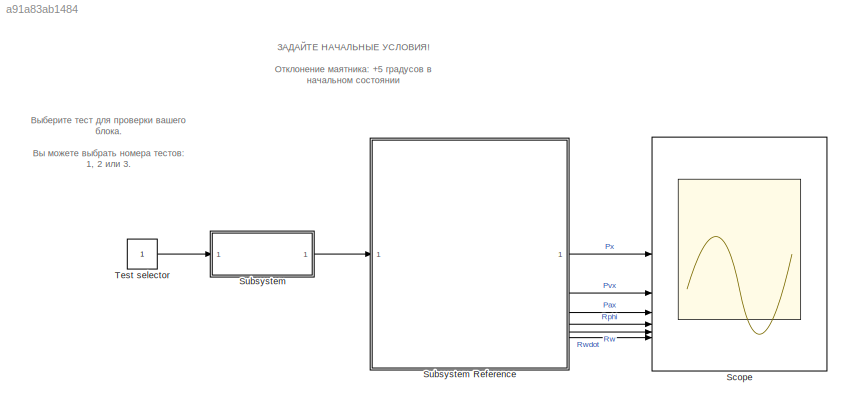
MODEL slx_a91a83ab1484
KIND model
CONFIG AbsTol = auto
CONFIG EnableMultiTasking = off
CONFIG FixedStep = 0.001
CONFIG MaxStep = auto
CONFIG MinStep = auto
CONFIG RelTol = 1e-3
CONFIG SampleTimeConstraint = Unconstrained
CONFIG SolverName = ode1be
CONFIG StartTime = 0.0
CONFIG StopTime = 6
BLOCK [Scope] Scope
  Floating = off
  NumInputPorts = 6
  ScopeSpecificationString = Simulink.scopes.TimeScopeBlockCfg('CurrentConfiguration', extmgr.ConfigurationSet(extmgr.Configuration('Core','General UI',true,'FigureColor',[1 1 1]),extmgr.Configuration('Core','Source UI',true),extmgr.Configuration('Sources','WiredSimulink',true),extmgr.Configuration('Visuals','Time Domain',true,'SerializedDisplays',{struct('MinYLimReal','-0.64873','MaxYLimReal','2.72606','YLabelReal','','MinYL...<+5726ch>
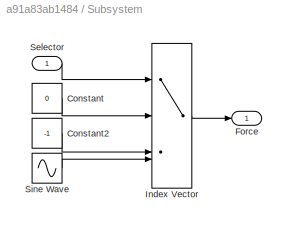
BLOCK [SubSystem] Subsystem
BLOCK [SubSystem] Subsystem Reference
  ReferencedSubsystem = InversePendulum
BLOCK [Constant] Subsystem/Constant
  Value = 0
BLOCK [Constant] Subsystem/Constant2
  Value = -1
BLOCK [Outport] Subsystem/Force
BLOCK [MultiPortSwitch] Subsystem/Index Vector
  InputSameDT = off
  SaturateOnIntegerOverflow = off
BLOCK [Inport] Subsystem/Selector
  NameLocation = top
BLOCK [Sin] Subsystem/Sine Wave
  Frequency = 10
  SampleTime = 0
BLOCK [Constant] Test selector
ANNOTATION (root): Выберите тест для проверки вашего блока. Вы можете выбрать номера тестов: 1, 2 или 3.
ANNOTATION (root): ЗАДАЙТЕ НАЧАЛЬНЫЕ УСЛОВИЯ! Отклонение маятника: +5 градусов в начальном состоянии
LINE Subsystem Reference:1 -> Scope:1
LINE Subsystem Reference:2 -> Scope:2
LINE Subsystem Reference:3 -> Scope:3
LINE Subsystem Reference:4 -> Scope:4
LINE Subsystem Reference:5 -> Scope:5
LINE Subsystem Reference:6 -> Scope:6
LINE Subsystem/Constant2:1 -> Subsystem/Index Vector:3
LINE Subsystem/Constant:1 -> Subsystem/Index Vector:2
LINE Subsystem/Index Vector:1 -> Subsystem/Force:1
LINE Subsystem/Selector:1 -> Subsystem/Index Vector:1
LINE Subsystem/Sine Wave:1 -> Subsystem/Index Vector:4
LINE Subsystem:1 -> Subsystem Reference:1
LINE Test selector:1 -> Subsystem:1
